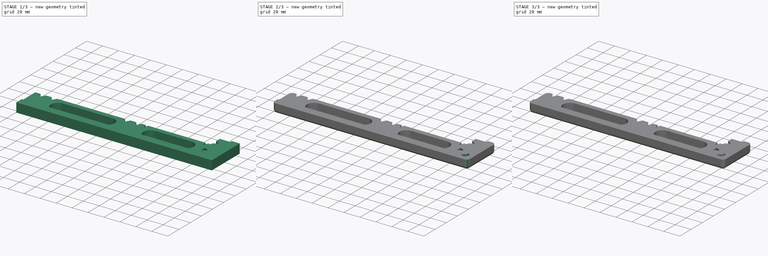
[diagram: build sequence overview — one tinted view per stage of 3, left to right]
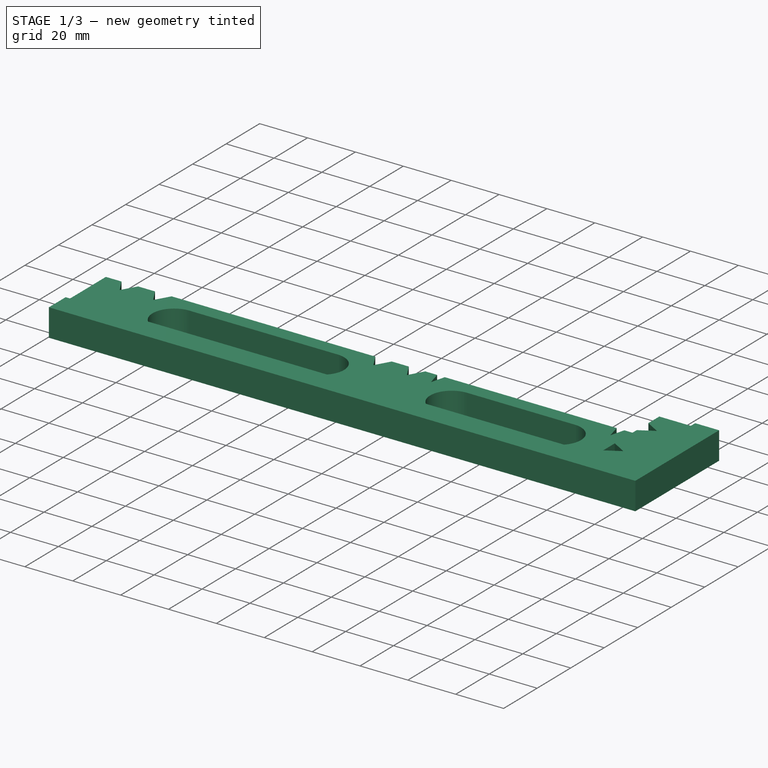
[diagram: stage 1 of 3 — iso view after this stage's code; geometry added in this stage tinted green]
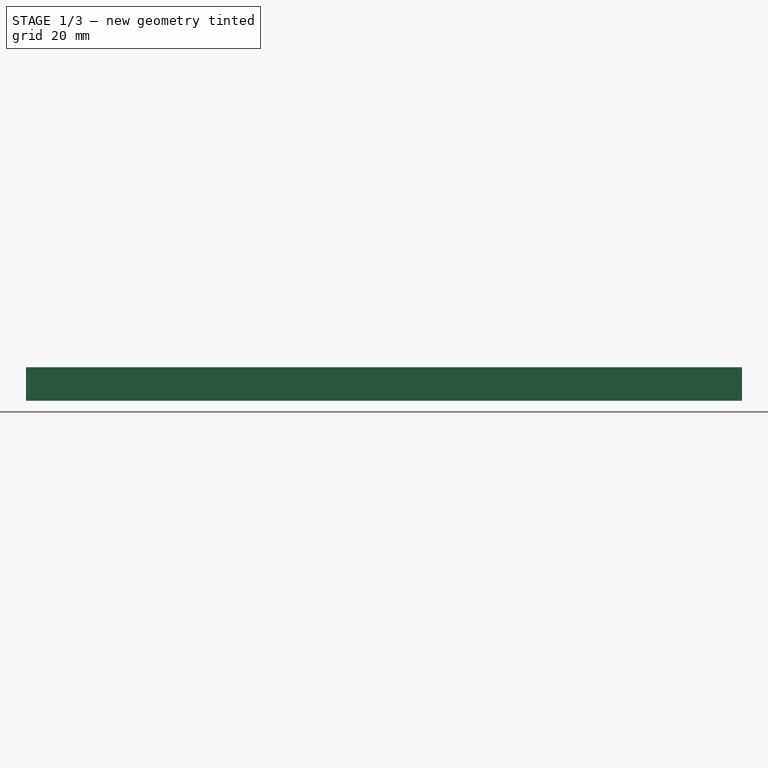
[diagram: stage 1 of 3 — front view after this stage's code; geometry added in this stage tinted green]
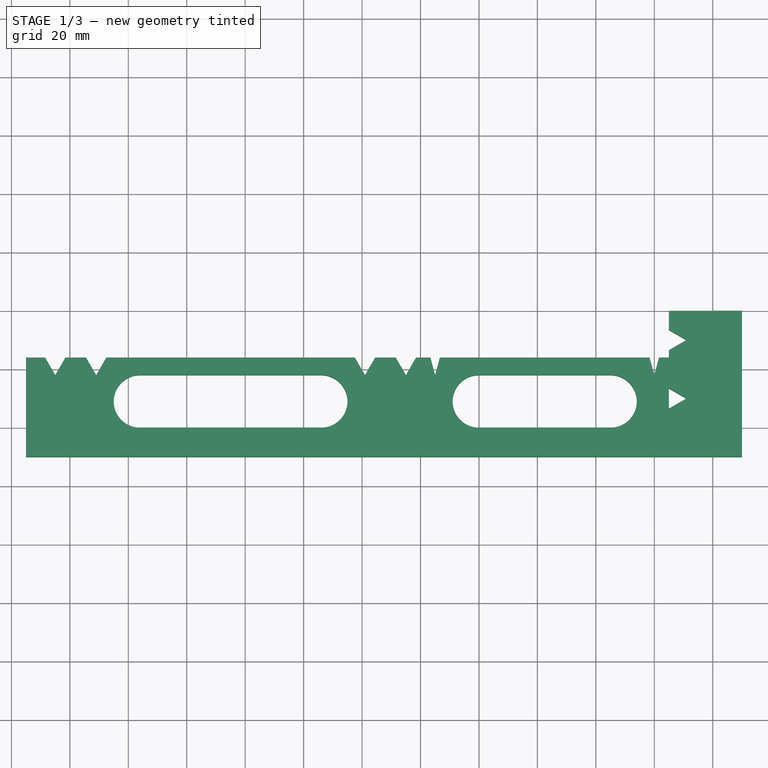
[diagram: stage 1 of 3 — top view after this stage's code; geometry added in this stage tinted green]
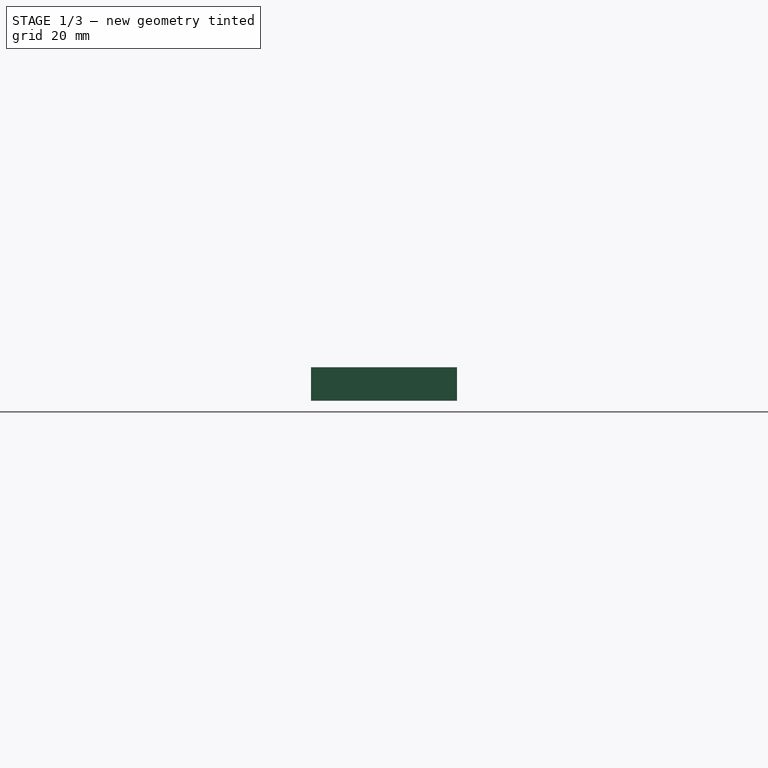
[diagram: stage 1 of 3 — right view after this stage's code; geometry added in this stage tinted green]
FCSTD DOCUMENT  (FreeCAD 0.19R24366 (Git))
Label: Radio over PSU bracket
License: All rights reserved
LicenseURL: http://en.wikipedia.org/wiki/All_rights_reserved
objects: Sketcher::SketchObject×3, PartDesign::Pad×2, PartDesign::Chamfer×2, PartDesign::Fillet×2, PartDesign::Pocket×1, PartDesign::Body×1
note: 18 computed .brp shape members not serialized (recipe doc carries the construction recipe); baked Part::Feature solids carry a one-line shape summary decoded from their .brp

FEATURE [Sketcher::SketchObject] Sketch
  FullyConstrained = true
  MapMode = 5
  Support = -> [XY_Plane]
  sketch-geometry (39):
    g0: LineSegment StartX=0 StartY=0 StartZ=0 EndX=0 EndY=40 EndZ=0
    g1: LineSegment StartX=0 StartY=40 StartZ=0 EndX=-15 EndY=40 EndZ=0
    g2: LineSegment StartX=-15 StartY=40 StartZ=0 EndX=-15 EndY=33.4641 EndZ=0
    g3: LineSegment StartX=-15 StartY=24 StartZ=0 EndX=-18.3923 EndY=24 EndZ=0
    g4: LineSegment StartX=-235 StartY=24 StartZ=0 EndX=-235 EndY=0 EndZ=0
    g5: LineSegment StartX=-235 StartY=0 StartZ=0 EndX=-196 EndY=0 EndZ=0
    g6: LineSegment StartX=-9 StartY=30 StartZ=0 EndX=-15 EndY=33.4641 EndZ=0
    g7: LineSegment StartX=-9 StartY=30 StartZ=0 EndX=-15 EndY=26.5359 EndZ=0
    g8: LineSegment StartX=-15 StartY=26.5359 StartZ=0 EndX=-15 EndY=24 EndZ=0
    g9: LineSegment StartX=-20 StartY=18 StartZ=0 EndX=-18.3923 EndY=24 EndZ=0
    g10: LineSegment StartX=-20 StartY=18 StartZ=0 EndX=-21.6077 EndY=24 EndZ=0
    g11: LineSegment StartX=-95 StartY=18 StartZ=0 EndX=-93.3923 EndY=24 EndZ=0
    g12: LineSegment StartX=-95 StartY=18 StartZ=0 EndX=-96.6077 EndY=24 EndZ=0
    g13: LineSegment StartX=-21.6077 StartY=24 StartZ=0 EndX=-93.3923 EndY=24 EndZ=0
    g14: LineSegment StartX=-96.6077 StartY=24 StartZ=0 EndX=-101.536 EndY=24 EndZ=0
    g15: LineSegment StartX=-108.464 StartY=24 StartZ=0 EndX=-105 EndY=18 EndZ=0
    g16: LineSegment StartX=-105 StartY=18 StartZ=0 EndX=-101.536 EndY=24 EndZ=0
    g17: LineSegment StartX=-108.464 StartY=24 StartZ=0 EndX=-115.536 EndY=24 EndZ=0
    g18: LineSegment StartX=-122.464 StartY=24 StartZ=0 EndX=-119 EndY=18 EndZ=0
    g19: LineSegment StartX=-119 StartY=18 StartZ=0 EndX=-115.536 EndY=24 EndZ=0
    g20: LineSegment StartX=-214.464 StartY=24 StartZ=0 EndX=-211 EndY=18 EndZ=0
    g21: LineSegment StartX=-211 StartY=18 StartZ=0 EndX=-207.536 EndY=24 EndZ=0
    g22: LineSegment StartX=-228.464 StartY=24 StartZ=0 EndX=-225 EndY=18 EndZ=0
    g23: LineSegment StartX=-225 StartY=18 StartZ=0 EndX=-221.536 EndY=24 EndZ=0
    g24: LineSegment StartX=-122.464 StartY=24 StartZ=0 EndX=-207.536 EndY=24 EndZ=0
    g25: LineSegment StartX=-214.464 StartY=24 StartZ=0 EndX=-221.536 EndY=24 EndZ=0
    g26: LineSegment StartX=-228.464 StartY=24 StartZ=0 EndX=-235 EndY=24 EndZ=0
    g27: GeomPoint X=-165 Y=18 Z=0
    g28: LineSegment StartX=-15 StartY=13.4641 StartZ=0 EndX=-9 EndY=10 EndZ=0
    g29: LineSegment StartX=-9 StartY=10 StartZ=0 EndX=-15 EndY=6.5359 EndZ=0
    g30: LineSegment StartX=-15 StartY=13.4641 StartZ=0 EndX=-15 EndY=6.5359 EndZ=0
    g31: ArcOfCircle CenterX=-196 CenterY=9 CenterZ=0 NormalX=0 NormalY=0 NormalZ=1 AngleXU=0 Radius=9 StartAngle=1.5708 EndAngle=4.71239
    g32: ArcOfCircle CenterX=-134 CenterY=9 CenterZ=0 NormalX=0 NormalY=0 NormalZ=1 AngleXU=0 Radius=9 StartAngle=4.71239 EndAngle=7.85398
    g33: LineSegment StartX=-196 StartY=18 StartZ=0 EndX=-134 EndY=18 EndZ=0
    g34: LineSegment StartX=-134 StartY=0 StartZ=0 EndX=-80 EndY=0 EndZ=0
    g35: ArcOfCircle CenterX=-80 CenterY=9 CenterZ=0 NormalX=0 NormalY=0 NormalZ=1 AngleXU=0 Radius=9 StartAngle=1.5708 EndAngle=4.71239
    g36: ArcOfCircle CenterX=-35 CenterY=9 CenterZ=0 NormalX=0 NormalY=0 NormalZ=1 AngleXU=0 Radius=9 StartAngle=4.71239 EndAngle=7.85398
    g37: LineSegment StartX=-80 StartY=18 StartZ=0 EndX=-35 EndY=18 EndZ=0
    g38: LineSegment StartX=-35 StartY=0 StartZ=0 EndX=0 EndY=0 EndZ=0
  constraints (105):
    c: Coincident(g-1,g0)
    c: PointOnObject(g0,g-2)
    c: Coincident(g0,g1)
    c: Horizontal(g1)
    c: Coincident(g1,g2)
    c: Vertical(g2)
    c: Horizontal(g3)
    c: Coincident(g26,g4)
    c: PointOnObject(g4,g-1)
    c: Vertical(g4)
    c: Coincident(g4,g5)
    c: Coincident(g38,g0)
    c: Coincident(g7,g6)
    c: Angle(g6,g7) = 1.0472
    c: DistanceX(g6,g0) = 9
    c: DistanceY(g6,g1) = 10
    c: Tangent(g2,g8)
    c: Coincident(g6,g2)
    c: Coincident(g7,g8)
    c: Coincident(g10,g9)
    c: Coincident(g12,g11)
    c: DistanceX(g11,g9) = 75
    c: Horizontal(g11,g9)
    c: Angle(g9,g10) = 0.523599
    c: Angle(g11,g12) = 0.523599
    c: Angle(g9) = 1.309
    c: Tangent(g3,g13)
    c: Coincident(g9,g3)
    c: Coincident(g10,g13)
    c: Angle(g11) = 1.309
    c: Tangent(g13,g14)
    c: Coincident(g11,g13)
    c: Coincident(g12,g14)
    c: Angle(g7) = -2.61799
    c: DistanceY(g9,g3) = 6
    c: Coincident(g16,g15)
    c: Angle(g16,g15) = 1.0472
    c: Angle(g16) = 1.0472
    c: Tangent(g14,g17)
    c: Coincident(g16,g14)
    c: Coincident(g15,g17)
    c: DistanceY(g15,g14) = 6
    c: DistanceY(g0,g11) = 18
    c: Coincident(g19,g18)
    c: Angle(g19,g18) = 1.0472
    c: Parallel(g16,g19) = 1.0472
    c: Coincident(g21,g20)
    c: Angle(g21,g20) = 1.0472
    c: Coincident(g23,g22)
    c: Angle(g23,g22) = 1.0472
    c: Horizontal(g22,g20)
    c: Horizontal(g20,g18)
    c: Horizontal(g18,g15)
    c: DistanceX(g18,g15) = 14
    c: Tangent(g17,g24)
    c: Coincident(g19,g17)
    c: Coincident(g18,g24)
    c: DistanceX(g20,g18) = 92
    c: DistanceX(g22,g20) = 14
    c: Angle(g21) = 1.0472
    c: Angle(g23) = 1.0472
    c: Tangent(g24,g25)
    c: Tangent(g25,g26)
    c: Coincident(g21,g24)
    c: Coincident(g20,g25)
    c: Coincident(g23,g25)
    c: Coincident(g22,g26)
    c: Symmetric(g20,g18,g27)
    c: DistanceX(g27,g11) = 70
    c: DistanceX(g9,g0) = 20
    c: Coincident(g29,g28)
    c: Angle(g28,g29) = 1.0472
    c: Coincident(g30,g28)
    c: Coincident(g30,g29)
    c: Vertical(g30)
    c: Vertical(g28,g6)
    c: DistanceY(g0,g28) = 10
    c: Coincident(g8,g3)
    c: DistanceY(g0,g0) = 40
    c: Vertical(g28,g7)
    c: Angle(g29) = -2.61799
    c: DistanceX(g2,g6) = 6
    c: DistanceX(g4,g0) = 235
    c: Tangent(g31,g33) = 1.5708
    c: Tangent(g33,g32) = 1.5708
    c: Equal(g31,g32)
    c: DistanceX(g20,g31) = 15
    c: DistanceX(g32,g18) = 15
    c: DistanceY(g31,g21) = 6
    c: Vertical(g31,g31)
    c: Vertical(g32,g32)
    c: Tangent(g5,g34)
    c: Tangent(g35,g37) = 1.5708
    c: Tangent(g37,g36) = 1.5708
    c: Equal(g35,g36)
    c: Vertical(g35,g35)
    c: Vertical(g36,g36)
    c: Horizontal(g32,g35)
    c: DistanceX(g11,g35) = 15
    c: DistanceX(g36,g9) = 15
    c: Tangent(g34,g38)
    c: Coincident(g5,g31)
    c: Coincident(g34,g35)
    c: Coincident(g34,g32)
    c: Coincident(g36,g38)
FEATURE [Sketcher::SketchObject] Sketch001
  ExternalGeometry = -> [Sketch]
  FullyConstrained = true
  MapMode = 5
  Support = -> [XY_Plane]
  sketch-geometry (6):
    g0: LineSegment StartX=10 StartY=-10 StartZ=0 EndX=10 EndY=40 EndZ=0
    g1: LineSegment StartX=10 StartY=40 StartZ=0 EndX=0 EndY=40 EndZ=0
    g2: LineSegment StartX=0 StartY=40 StartZ=0 EndX=0 EndY=0 EndZ=0
    g3: LineSegment StartX=0 StartY=0 StartZ=0 EndX=-235 EndY=0 EndZ=0
    g4: LineSegment StartX=-235 StartY=0 StartZ=0 EndX=-235 EndY=-10 EndZ=0
    g5: LineSegment StartX=-235 StartY=-10 StartZ=0 EndX=10 EndY=-10 EndZ=0
  constraints (15):
    c: Vertical(g0)
    c: Coincident(g0,g1)
    c: Coincident(g1,g2)
    c: Coincident(g2,g-1)
    c: Coincident(g2,g3)
    c: Coincident(g3,g4)
    c: Coincident(g4,g5)
    c: Coincident(g5,g0)
    c: Horizontal(g5)
    c: Horizontal(g1)
    c: Coincident(g3,g-4)
    c: Vertical(g4)
    c: Coincident(g1,g-3)
    c: DistanceX(g2,g0) = 10
    c: DistanceY(g0,g2) = 10
FEATURE [PartDesign::Pad] Pad
  Direction = (1,1,1)
  Length = 10
  Length2 = 100
  Profile = -> Sketch
  Type = 0
FEATURE [PartDesign::Pad] Pad001
  BaseFeature = -> Pad
  Direction = (1,1,1)
  Length = 11.5
  Length2 = 100
  Profile = -> Sketch001
  Type = 0
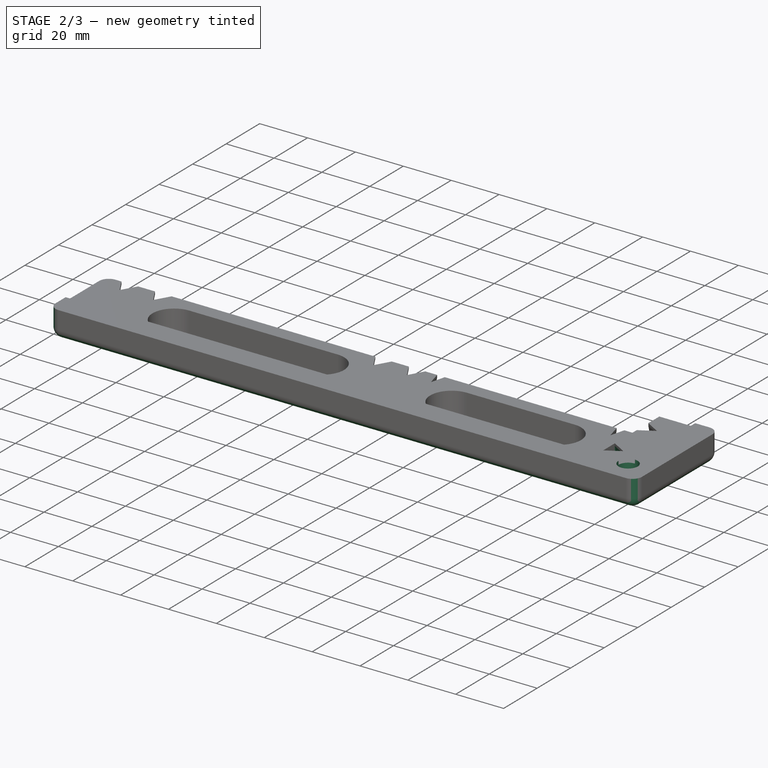
[diagram: stage 2 of 3 — iso view after this stage's code; geometry added in this stage tinted green]
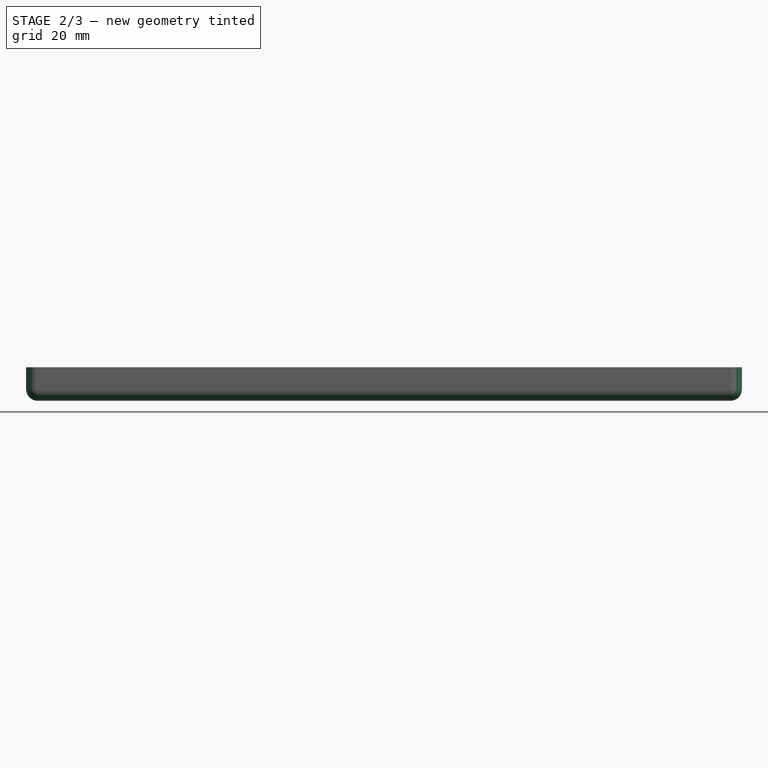
[diagram: stage 2 of 3 — front view after this stage's code; geometry added in this stage tinted green]
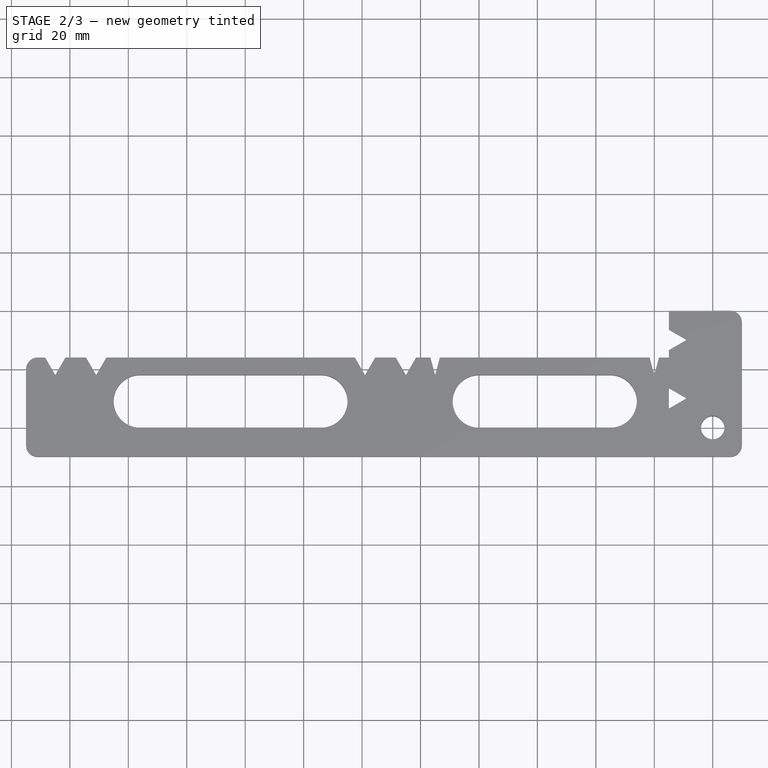
[diagram: stage 2 of 3 — top view after this stage's code; geometry added in this stage tinted green]
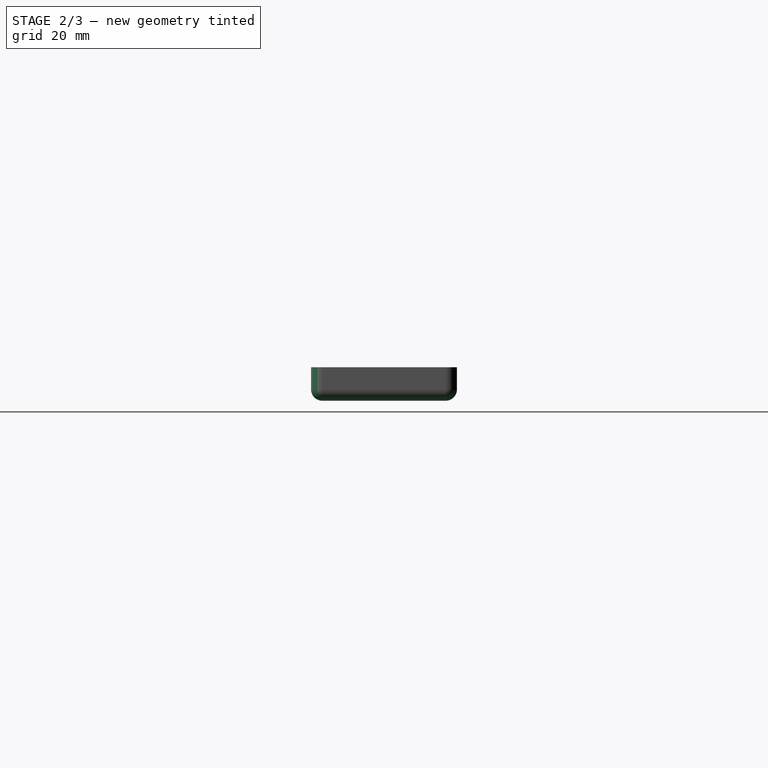
[diagram: stage 2 of 3 — right view after this stage's code; geometry added in this stage tinted green]
FEATURE [PartDesign::Chamfer] Chamfer
  Angle = 45
  Base = -> Pad001 [Edge15,Edge19,Edge22,Edge25,Edge28,Edge31,Edge34,Edge33,Edge30,Edge27,Edge24,Edge21,Edge18,Edge14,Edge45,Edge46]
  BaseFeature = -> Pad001
  ChamferType = 1
  FlipDirection = false
  Size = 2
  Size2 = 9
  SupportTransform = false
FEATURE [PartDesign::Fillet] Fillet
  Base = -> Chamfer [Edge173,Edge169,Edge143,Edge167,Edge159,Edge156,Edge157,Edge47,Edge158,Edge69,Edge71,Edge77,Edge76,Edge70,Edge58,Edge64,Edge52,Edge4,Edge50]
  BaseFeature = -> Chamfer
  Radius = 4
  SupportTransform = false
FEATURE [Sketcher::SketchObject] Sketch002
  FullyConstrained = true
  MapMode = 5
  Support = -> [XY_Plane]
  sketch-geometry (1):
    g0: Circle CenterX=0 CenterY=0 CenterZ=0 NormalX=0 NormalY=0 NormalZ=1 AngleXU=0 Radius=4
  constraints (2):
    c: Coincident(g0,g-1)
    c: Radius(g0) = 4
FEATURE [PartDesign::Pocket] Pocket
  BaseFeature = -> Fillet
  Length = 0
  Length2 = 100
  Midplane = true
  Profile = -> Sketch002
  Type = 1
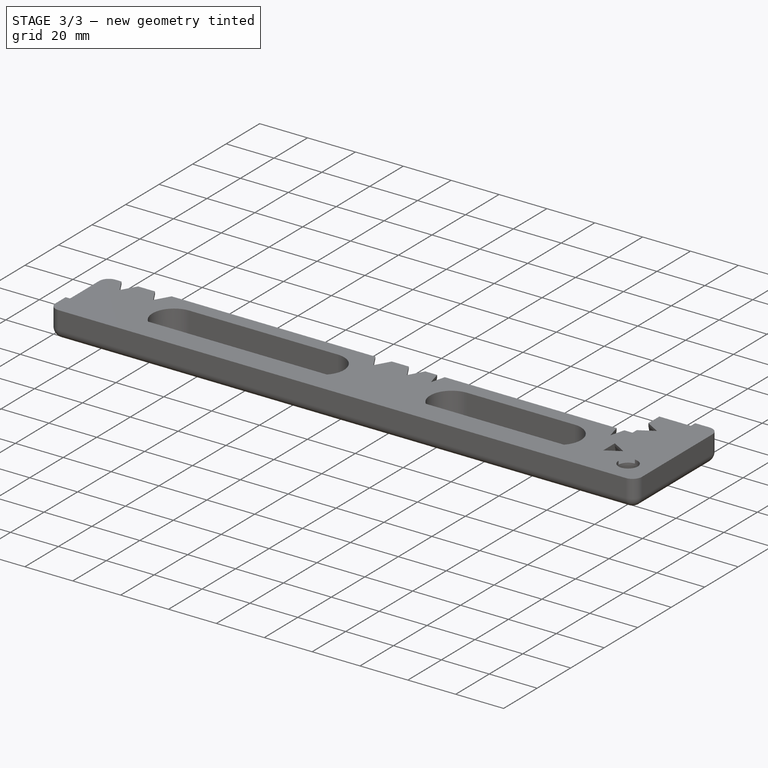
[diagram: stage 3 of 3 — iso view after this stage's code; geometry added in this stage tinted green]
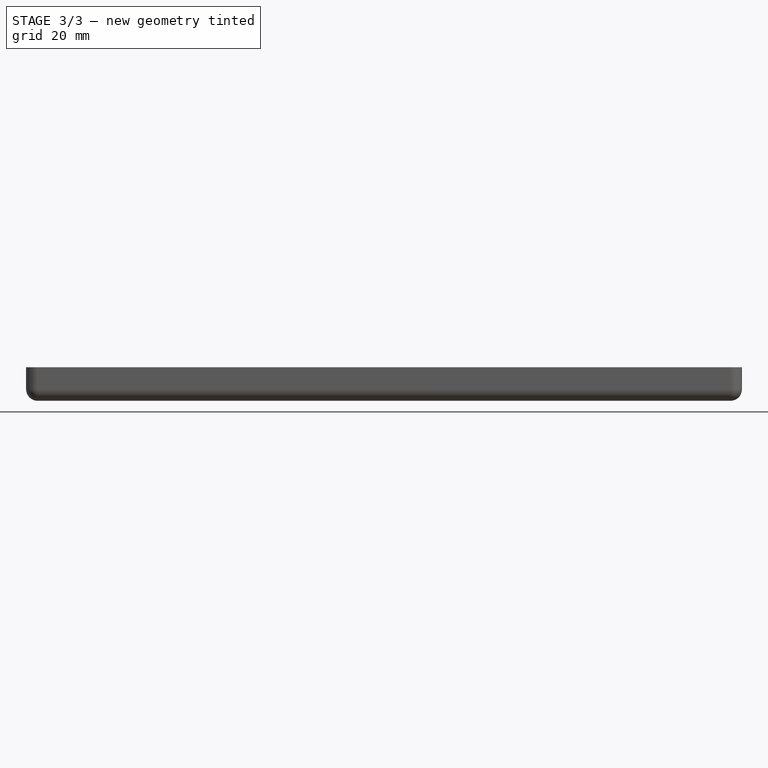
[diagram: stage 3 of 3 — front view after this stage's code; geometry added in this stage tinted green]
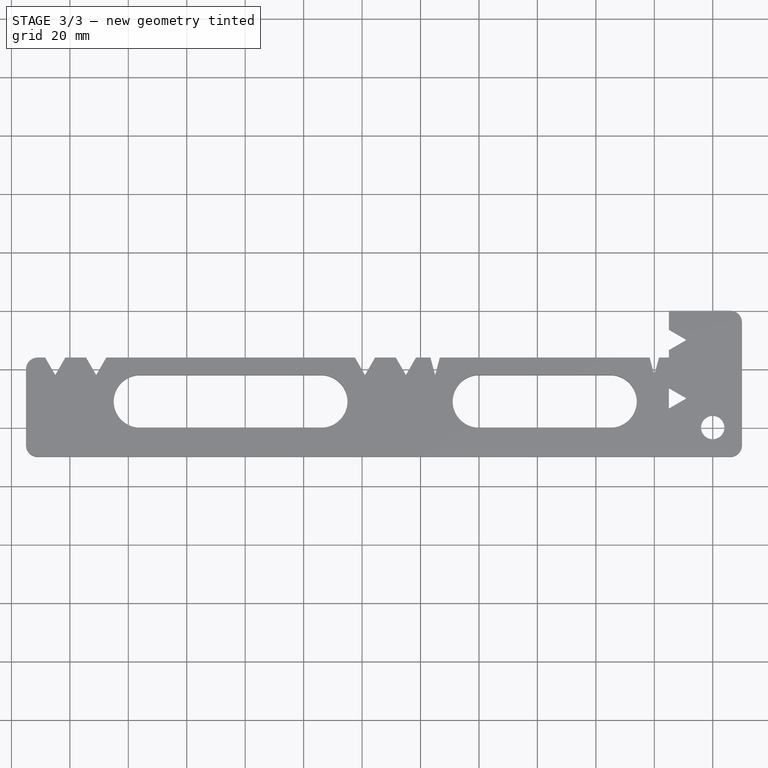
[diagram: stage 3 of 3 — top view after this stage's code; geometry added in this stage tinted green]
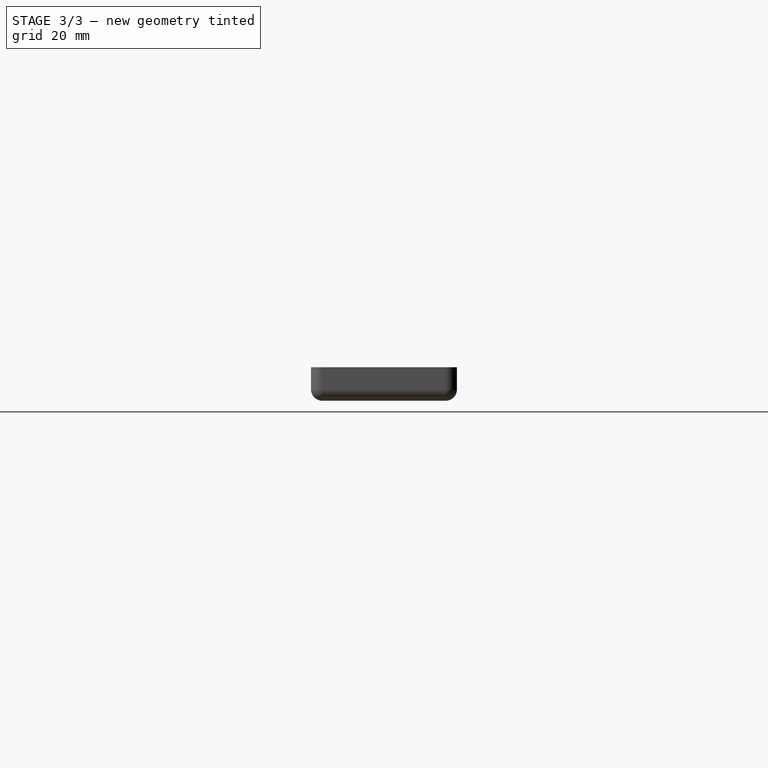
[diagram: stage 3 of 3 — right view after this stage's code; geometry added in this stage tinted green]
FEATURE [PartDesign::Chamfer] Chamfer001
  Angle = 12
  Base = -> Pocket [Edge160,Edge161,Edge56]
  BaseFeature = -> Pocket
  ChamferType = 2
  FlipDirection = false
  Size = 9
  Size2 = 1
  SupportTransform = false
FEATURE [PartDesign::Fillet] Fillet001
  Base = -> Chamfer001 [Edge18,Edge49,Edge14,Edge16,Edge10,Edge47,Edge6,Edge8]
  BaseFeature = -> Chamfer001
  Radius = 1.5
  SupportTransform = false
FEATURE [PartDesign::Body] Body
  Group = -> [Sketch,Sketch001,Pad,Pad001,Chamfer,Fillet,Sketch002,Pocket,Chamfer001,Fillet001]
  Origin = -> Origin
  Tip = -> Fillet001
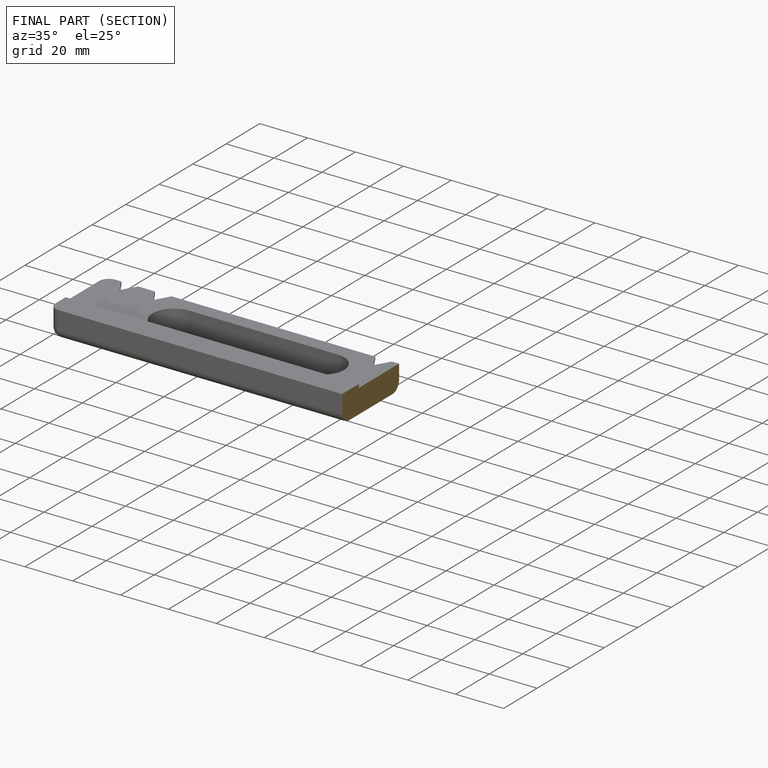
[diagram: finished part — half-section view (interior)]
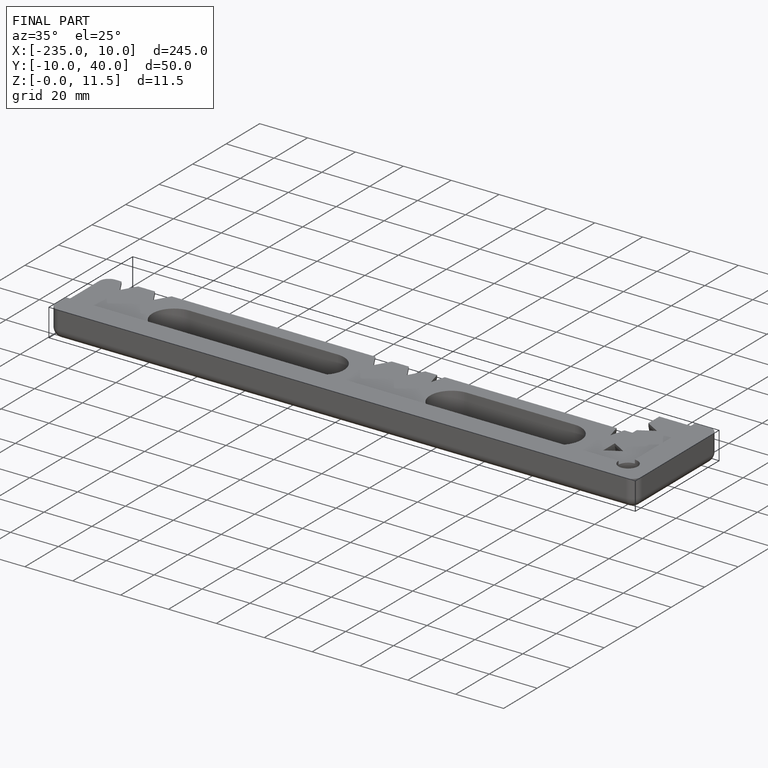
[diagram: finished part — iso view with bounding-box wireframe]
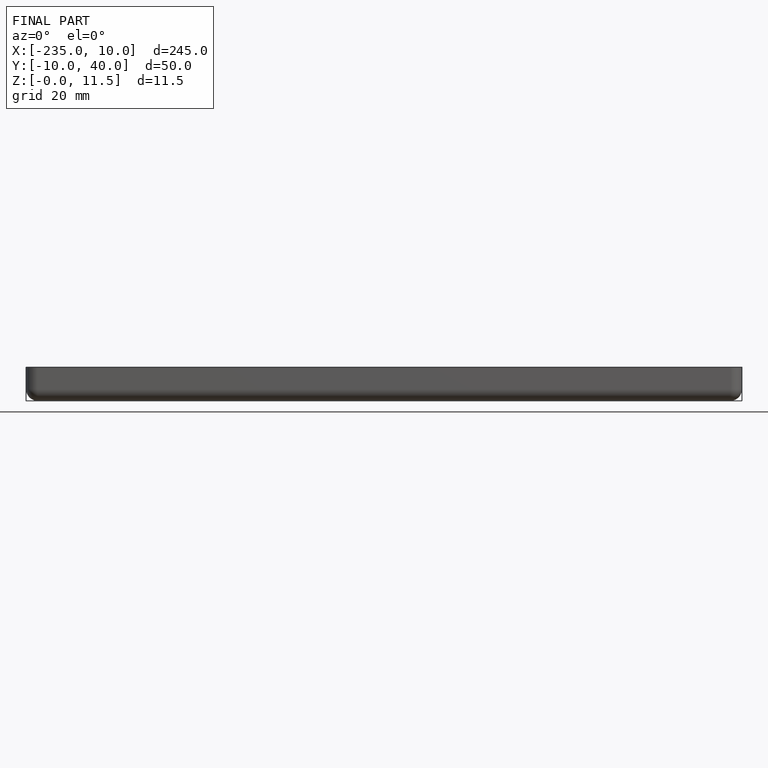
[diagram: finished part — front view with bounding-box wireframe]
